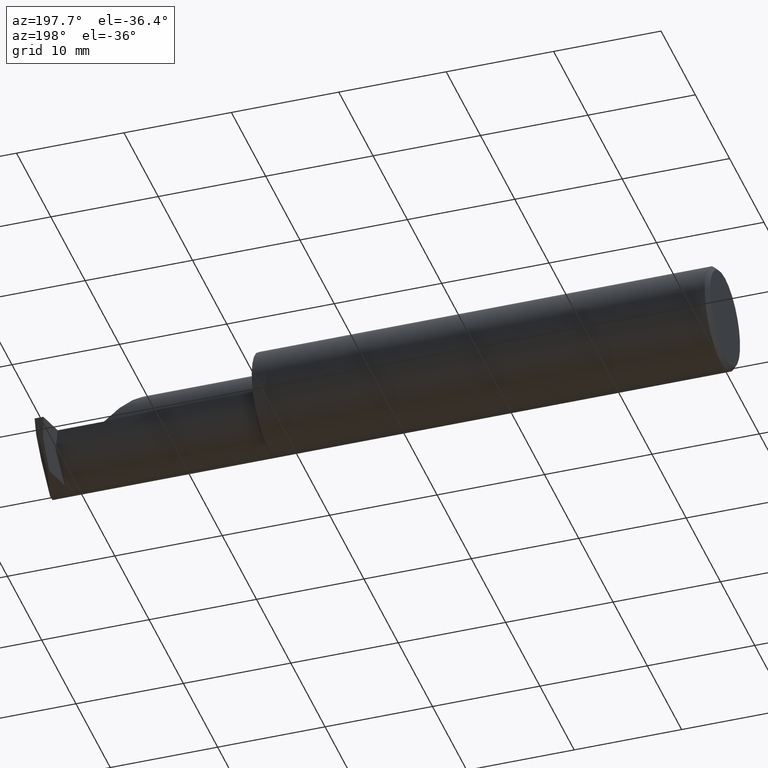
[diagram: clean part render]
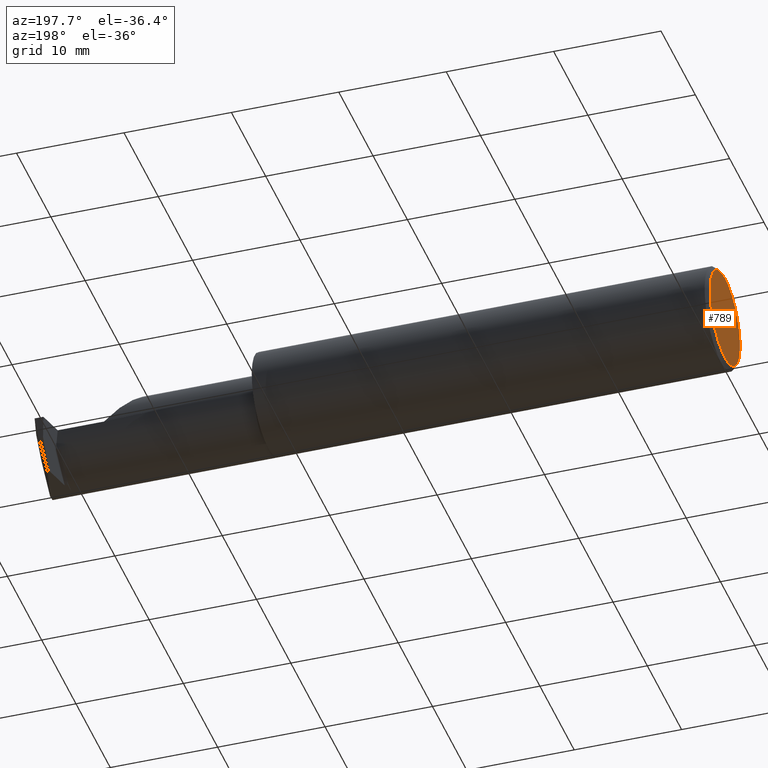
[diagram: same view with one face highlighted and labeled with its STEP entity id]
A machine part, auxiliary view. The second image highlights one B-rep face of the part: STEP entity #789.
In plain terms, the highlighted planar face has unit normal (1, 0, 0).
Its self-contained STEP definition (entity closure, byte-faithful):
#14 = CARTESIAN_POINT ( 'NONE',  ( 0.000000000000000000, 0.000000000000000000, 0.000000000000000000 ) ) ;
#31 = CIRCLE ( 'NONE', #486, 0.1723499999999993371 ) ;
#74 = DIRECTION ( 'NONE',  ( 0.000000000000000000, 0.000000000000000000, -1.000000000000000000 ) ) ;
#121 = CARTESIAN_POINT ( 'NONE',  ( 0.000000000000000000, 0.000000000000000000, 0.000000000000000000 ) ) ;
#176 = CIRCLE ( 'NONE', #664, 0.1723499999999993371 ) ;
#224 = EDGE_CURVE ( 'NONE', #747, #377, #31, .T. ) ;
#243 = DIRECTION ( 'NONE',  ( 0.000000000000000000, 0.000000000000000000, -1.000000000000000000 ) ) ;
#247 = DIRECTION ( 'NONE',  ( -1.000000000000000000, -0.000000000000000000, -0.000000000000000000 ) ) ;
#316 = ORIENTED_EDGE ( 'NONE', *, *, #224, .T. ) ;
#377 = VERTEX_POINT ( 'NONE', #668 ) ;
#458 = DIRECTION ( 'NONE',  ( 1.000000000000000000, 0.000000000000000000, 0.000000000000000000 ) ) ;
#486 = AXIS2_PLACEMENT_3D ( 'NONE', #121, #895, #518 ) ;
#518 = DIRECTION ( 'NONE',  ( 0.000000000000000000, 0.000000000000000000, -1.000000000000000000 ) ) ;
#537 = EDGE_CURVE ( 'NONE', #377, #747, #176, .T. ) ;
#605 = PLANE ( 'NONE',  #811 ) ;
#664 = AXIS2_PLACEMENT_3D ( 'NONE', #979, #247, #74 ) ;
#668 = CARTESIAN_POINT ( 'NONE',  ( 0.000000000000000000, 2.202527268266510421E-17, 0.1723499999999993371 ) ) ;
#691 = CARTESIAN_POINT ( 'NONE',  ( 0.000000000000000000, 0.000000000000000000, -0.1723499999999993371 ) ) ;
#747 = VERTEX_POINT ( 'NONE', #691 ) ;
#789 = ADVANCED_FACE ( 'NONE', ( #917 ), #605, .F. ) ;
#793 = EDGE_LOOP ( 'NONE', ( #316, #907 ) ) ;
#811 = AXIS2_PLACEMENT_3D ( 'NONE', #14, #458, #243 ) ;
#895 = DIRECTION ( 'NONE',  ( -1.000000000000000000, -0.000000000000000000, -0.000000000000000000 ) ) ;
#907 = ORIENTED_EDGE ( 'NONE', *, *, #537, .T. ) ;
#917 = FACE_OUTER_BOUND ( 'NONE', #793, .T. ) ;
#979 = CARTESIAN_POINT ( 'NONE',  ( 0.000000000000000000, 0.000000000000000000, 0.000000000000000000 ) ) ;